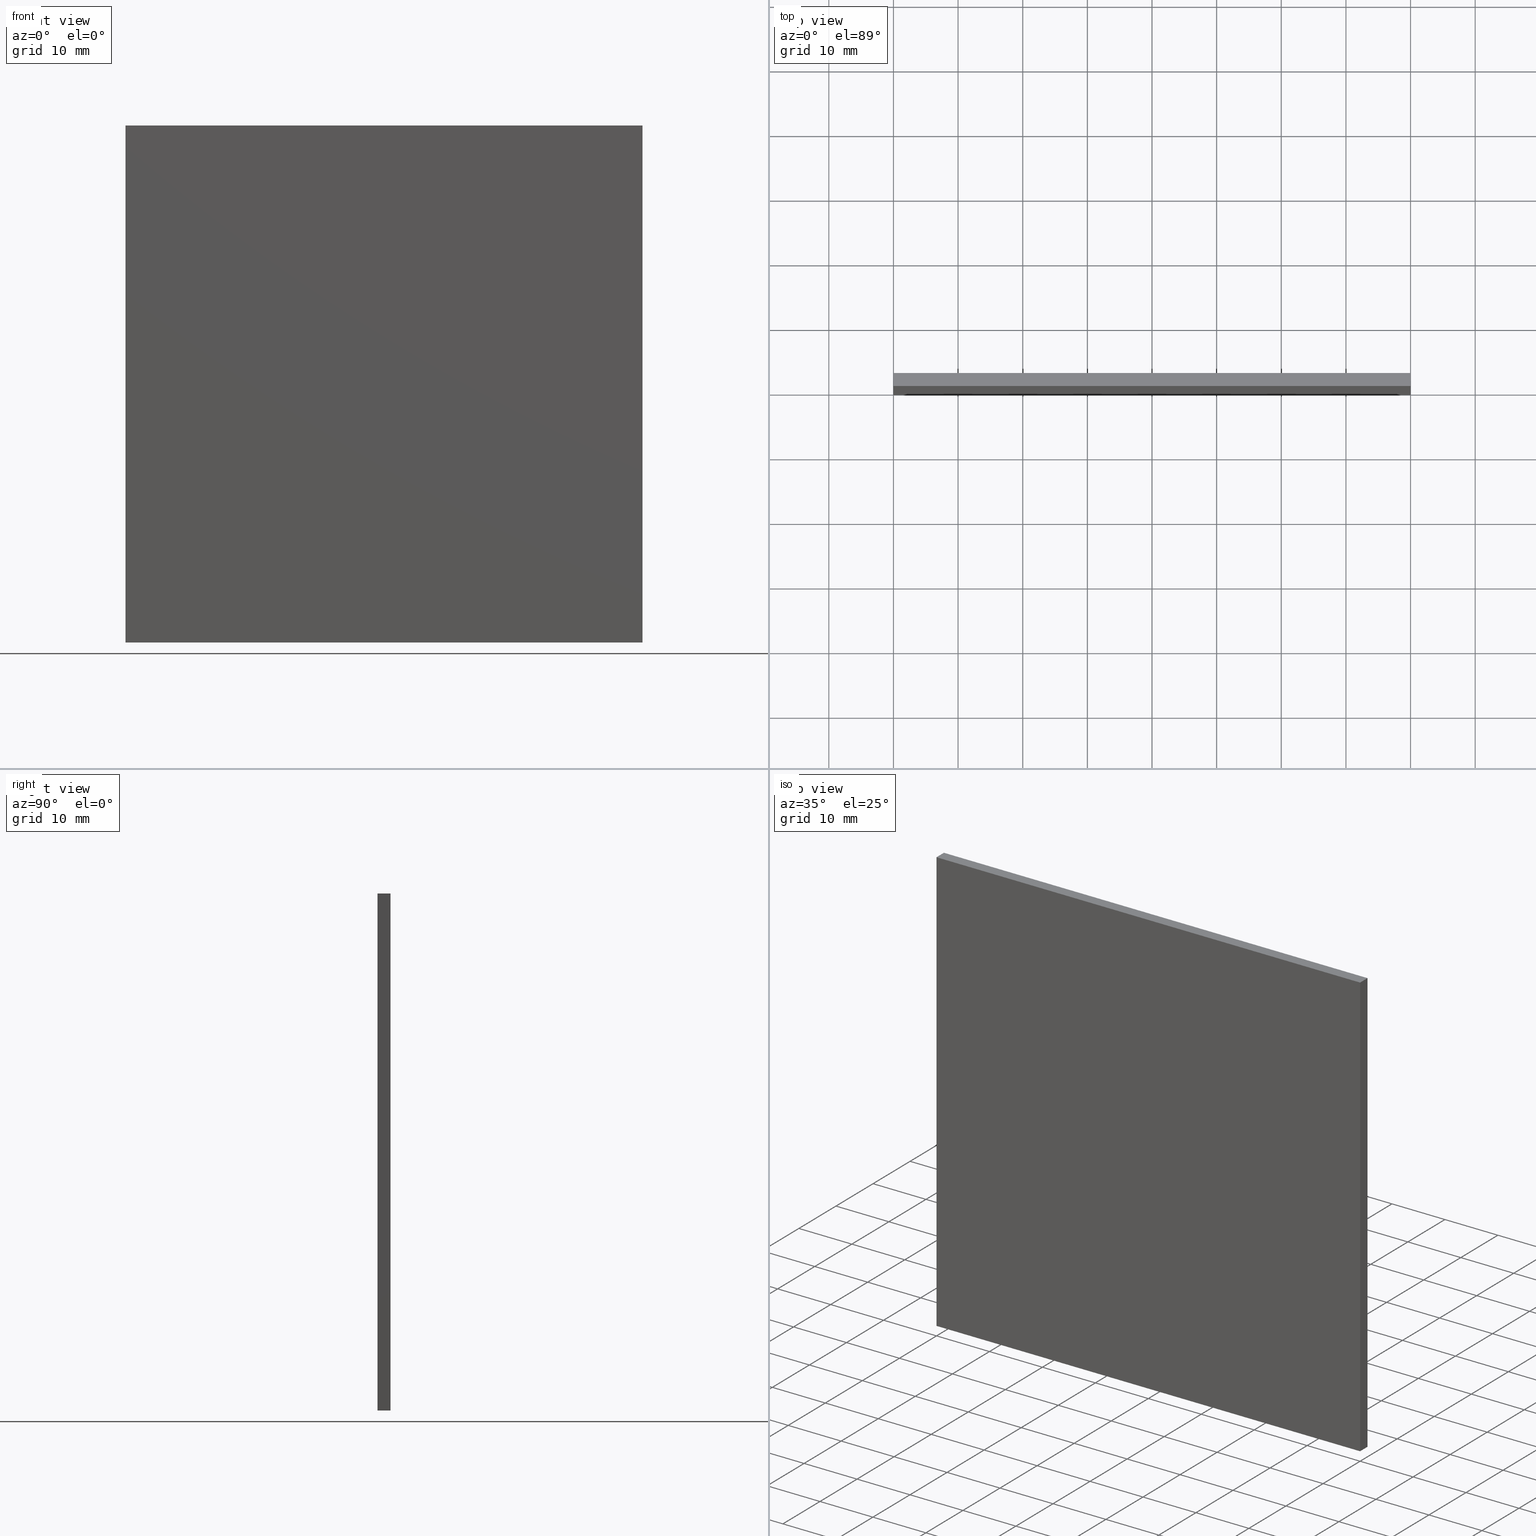
[diagram: canonical four-view strip — front | top / right | iso, engineering-drawing reading convention]
A machine part, canonical four-view strip (front | top / right | iso — engineering-drawing reading convention). The complete STEP part file that produces these views, byte-faithful:
ISO-10303-21;
HEADER;
FILE_DESCRIPTION (( 'STEP AP214' ),
    '1' );
FILE_NAME ('258516.STEP',
    '2019-08-07T02:28:26',
    ( 'user' ),
    ( '΢���й�' ),
    'SwSTEP 2.0',
    'SolidWorks 2016',
    '' );
FILE_SCHEMA (( 'AUTOMOTIVE_DESIGN' ));
ENDSEC;

DATA;
#1 = MECHANICAL_DESIGN_GEOMETRIC_PRESENTATION_REPRESENTATION (  '', ( #171 ), #10 ) ;
#2 = COLOUR_RGB ( '',1.000000000000000000, 1.000000000000000000, 1.000000000000000000 ) ;
#3 = ADVANCED_FACE ( 'NONE', ( #141 ), #117, .T. ) ;
#4 = MECHANICAL_DESIGN_GEOMETRIC_PRESENTATION_REPRESENTATION (  '', ( #187 ), #18 ) ;
#5 = ORIENTED_EDGE ( 'NONE', *, *, #110, .T. ) ;
#6 = DIRECTION ( 'NONE',  ( -0.0000000000000000000, -1.000000000000000000, -0.0000000000000000000 ) ) ;
#7 = LINE ( 'NONE', #96, #168 ) ;
#8 = EDGE_CURVE ( 'NONE', #40, #31, #56, .T. ) ;
#9 = DIRECTION ( 'NONE',  ( 0.0000000000000000000, 0.0000000000000000000, 1.000000000000000000 ) ) ;
#10 =( GEOMETRIC_REPRESENTATION_CONTEXT ( 3 ) GLOBAL_UNCERTAINTY_ASSIGNED_CONTEXT ( ( #189 ) ) GLOBAL_UNIT_ASSIGNED_CONTEXT ( ( #11, #107, #58 ) ) REPRESENTATION_CONTEXT ( 'NONE', 'WORKASPACE' ) );
#11 =( LENGTH_UNIT ( ) NAMED_UNIT ( * ) SI_UNIT ( .MILLI., .METRE. ) );
#12 = FACE_OUTER_BOUND ( 'NONE', #112, .T. ) ;
#13 = EDGE_LOOP ( 'NONE', ( #153, #20, #83, #105 ) ) ;
#14 = DIRECTION ( 'NONE',  ( 0.0000000000000000000, 0.0000000000000000000, 1.000000000000000000 ) ) ;
#15 =( NAMED_UNIT ( * ) PLANE_ANGLE_UNIT ( ) SI_UNIT ( $, .RADIAN. ) );
#16 = DIRECTION ( 'NONE',  ( -0.0000000000000000000, -1.000000000000000000, -0.0000000000000000000 ) ) ;
#17 = VECTOR ( 'NONE', #6, 1000.000000000000000 ) ;
#18 =( GEOMETRIC_REPRESENTATION_CONTEXT ( 3 ) GLOBAL_UNCERTAINTY_ASSIGNED_CONTEXT ( ( #155 ) ) GLOBAL_UNIT_ASSIGNED_CONTEXT ( ( #92, #15, #116 ) ) REPRESENTATION_CONTEXT ( 'NONE', 'WORKASPACE' ) );
#19 = SHAPE_DEFINITION_REPRESENTATION ( #167, #54 ) ;
#20 = ORIENTED_EDGE ( 'NONE', *, *, #147, .F. ) ;
#21 = ORIENTED_EDGE ( 'NONE', *, *, #53, .T. ) ;
#22 = EDGE_CURVE ( 'NONE', #76, #120, #103, .T. ) ;
#23 = LINE ( 'NONE', #28, #104 ) ;
#24 = ORIENTED_EDGE ( 'NONE', *, *, #150, .F. ) ;
#25 = APPLICATION_CONTEXT ( 'automotive_design' ) ;
#26 = SURFACE_SIDE_STYLE ('',( #132 ) ) ;
#27 = VECTOR ( 'NONE', #98, 1000.000000000000000 ) ;
#28 = CARTESIAN_POINT ( 'NONE',  ( -40.00000000000001400, 0.0000000000000000000, -40.00000000000000700 ) ) ;
#29 = ORIENTED_EDGE ( 'NONE', *, *, #147, .T. ) ;
#30 = DIRECTION ( 'NONE',  ( 1.000000000000000000, 0.0000000000000000000, 0.0000000000000000000 ) ) ;
#31 = VERTEX_POINT ( 'NONE', #165 ) ;
#32 = CARTESIAN_POINT ( 'NONE',  ( 40.00000000000000000, 0.0000000000000000000, -40.00000000000000700 ) ) ;
#33 = EDGE_CURVE ( 'NONE', #76, #85, #7, .T. ) ;
#34 = DIRECTION ( 'NONE',  ( 8.673617379884035500E-017, -0.0000000000000000000, -1.000000000000000000 ) ) ;
#35 = LINE ( 'NONE', #156, #27 ) ;
#36 = DIRECTION ( 'NONE',  ( 0.0000000000000000000, 1.000000000000000000, -0.0000000000000000000 ) ) ;
#37 = FILL_AREA_STYLE_COLOUR ( '', #2 ) ;
#38 = ORIENTED_EDGE ( 'NONE', *, *, #33, .F. ) ;
#39 = AXIS2_PLACEMENT_3D ( 'NONE', #100, #88, #69 ) ;
#40 = VERTEX_POINT ( 'NONE', #136 ) ;
#41 = FILL_AREA_STYLE ('',( #67 ) ) ;
#42 = PLANE ( 'NONE',  #163 ) ;
#43 = PLANE ( 'NONE',  #47 ) ;
#44 = CARTESIAN_POINT ( 'NONE',  ( -40.00000000000001400, 2.000000000000000000, -40.00000000000000700 ) ) ;
#45 = CARTESIAN_POINT ( 'NONE',  ( -40.00000000000001400, 0.0000000000000000000, -40.00000000000000700 ) ) ;
#46 = ADVANCED_FACE ( 'NONE', ( #130 ), #42, .F. ) ;
#47 = AXIS2_PLACEMENT_3D ( 'NONE', #166, #79, #185 ) ;
#48 = VECTOR ( 'NONE', #62, 1000.000000000000000 ) ;
#49 = PRESENTATION_STYLE_ASSIGNMENT (( #176 ) ) ;
#50 = AXIS2_PLACEMENT_3D ( 'NONE', #149, #9, #70 ) ;
#51 = PRESENTATION_STYLE_ASSIGNMENT (( #84 ) ) ;
#52 = SURFACE_STYLE_FILL_AREA ( #196 ) ;
#53 = EDGE_CURVE ( 'NONE', #148, #31, #93, .T. ) ;
#54 = ADVANCED_BREP_SHAPE_REPRESENTATION ( '258516', ( #77, #50 ), #86 ) ;
#55 = ADVANCED_FACE ( 'NONE', ( #12 ), #200, .F. ) ;
#56 = LINE ( 'NONE', #127, #172 ) ;
#57 =( NAMED_UNIT ( * ) SI_UNIT ( $, .STERADIAN. ) SOLID_ANGLE_UNIT ( ) );
#58 =( NAMED_UNIT ( * ) SI_UNIT ( $, .STERADIAN. ) SOLID_ANGLE_UNIT ( ) );
#59 = SURFACE_SIDE_STYLE ('',( #52 ) ) ;
#60 = LINE ( 'NONE', #123, #48 ) ;
#61 = DIRECTION ( 'NONE',  ( 1.000000000000000000, 0.0000000000000000000, -0.0000000000000000000 ) ) ;
#62 = DIRECTION ( 'NONE',  ( -0.0000000000000000000, -1.000000000000000000, -0.0000000000000000000 ) ) ;
#63 = PRODUCT_DEFINITION ( 'δ֪', '', #75, #177 ) ;
#64 = CARTESIAN_POINT ( 'NONE',  ( -40.00000000000000700, 0.0000000000000000000, 39.99999999999999300 ) ) ;
#65 = ORIENTED_EDGE ( 'NONE', *, *, #22, .T. ) ;
#66 = CARTESIAN_POINT ( 'NONE',  ( 40.00000000000000000, 0.0000000000000000000, -40.00000000000000700 ) ) ;
#67 = FILL_AREA_STYLE_COLOUR ( '', #144 ) ;
#68 = LINE ( 'NONE', #66, #151 ) ;
#69 = DIRECTION ( 'NONE',  ( 0.0000000000000000000, 0.0000000000000000000, 1.000000000000000000 ) ) ;
#70 = DIRECTION ( 'NONE',  ( 1.000000000000000000, 0.0000000000000000000, 0.0000000000000000000 ) ) ;
#71 = ORIENTED_EDGE ( 'NONE', *, *, #119, .F. ) ;
#72 = AXIS2_PLACEMENT_3D ( 'NONE', #95, #36, #14 ) ;
#73 = ORIENTED_EDGE ( 'NONE', *, *, #150, .T. ) ;
#74 = VECTOR ( 'NONE', #97, 1000.000000000000000 ) ;
#75 = PRODUCT_DEFINITION_FORMATION_WITH_SPECIFIED_SOURCE ( '�κ�', '', #131, .NOT_KNOWN. ) ;
#76 = VERTEX_POINT ( 'NONE', #109 ) ;
#77 = MANIFOLD_SOLID_BREP ( '͹̨-����1', #118 ) ;
#78 = EDGE_LOOP ( 'NONE', ( #21, #192, #190, #29 ) ) ;
#79 = DIRECTION ( 'NONE',  ( 0.0000000000000000000, 0.0000000000000000000, -1.000000000000000000 ) ) ;
#80 = FACE_OUTER_BOUND ( 'NONE', #145, .T. ) ;
#81 = EDGE_CURVE ( 'NONE', #40, #160, #164, .T. ) ;
#82 = DIRECTION ( 'NONE',  ( 8.673617379884035500E-017, 0.0000000000000000000, 1.000000000000000000 ) ) ;
#83 = ORIENTED_EDGE ( 'NONE', *, *, #22, .F. ) ;
#84 = SURFACE_STYLE_USAGE ( .BOTH. , #26 ) ;
#85 = VERTEX_POINT ( 'NONE', #32 ) ;
#86 =( GEOMETRIC_REPRESENTATION_CONTEXT ( 3 ) GLOBAL_UNCERTAINTY_ASSIGNED_CONTEXT ( ( #138 ) ) GLOBAL_UNIT_ASSIGNED_CONTEXT ( ( #94, #178, #57 ) ) REPRESENTATION_CONTEXT ( 'NONE', 'WORKASPACE' ) );
#87 = CARTESIAN_POINT ( 'NONE',  ( -40.00000000000000700, 2.000000000000000000, 39.99999999999999300 ) ) ;
#88 = DIRECTION ( 'NONE',  ( 0.0000000000000000000, 1.000000000000000000, -0.0000000000000000000 ) ) ;
#89 = PRODUCT_RELATED_PRODUCT_CATEGORY ( 'part', '', ( #131 ) ) ;
#90 = ORIENTED_EDGE ( 'NONE', *, *, #53, .F. ) ;
#91 = AXIS2_PLACEMENT_3D ( 'NONE', #122, #157, #111 ) ;
#92 =( LENGTH_UNIT ( ) NAMED_UNIT ( * ) SI_UNIT ( .MILLI., .METRE. ) );
#93 = LINE ( 'NONE', #137, #134 ) ;
#94 =( LENGTH_UNIT ( ) NAMED_UNIT ( * ) SI_UNIT ( .MILLI., .METRE. ) );
#95 = CARTESIAN_POINT ( 'NONE',  ( 0.0000000000000000000, 0.0000000000000000000, 0.0000000000000000000 ) ) ;
#96 = CARTESIAN_POINT ( 'NONE',  ( 40.00000000000000000, 2.000000000000000000, -40.00000000000000700 ) ) ;
#97 = DIRECTION ( 'NONE',  ( 8.673617379884035500E-017, -0.0000000000000000000, -1.000000000000000000 ) ) ;
#98 = DIRECTION ( 'NONE',  ( 8.673617379884035500E-017, 0.0000000000000000000, 1.000000000000000000 ) ) ;
#99 = VECTOR ( 'NONE', #199, 1000.000000000000000 ) ;
#100 = CARTESIAN_POINT ( 'NONE',  ( 0.0000000000000000000, 2.000000000000000000, 0.0000000000000000000 ) ) ;
#101 = EDGE_CURVE ( 'NONE', #160, #76, #114, .T. ) ;
#102 = ADVANCED_FACE ( 'NONE', ( #80 ), #43, .F. ) ;
#103 = LINE ( 'NONE', #140, #99 ) ;
#104 = VECTOR ( 'NONE', #180, 1000.000000000000000 ) ;
#105 = ORIENTED_EDGE ( 'NONE', *, *, #33, .T. ) ;
#106 = ORIENTED_EDGE ( 'NONE', *, *, #8, .T. ) ;
#107 =( NAMED_UNIT ( * ) PLANE_ANGLE_UNIT ( ) SI_UNIT ( $, .RADIAN. ) );
#108 = FACE_OUTER_BOUND ( 'NONE', #146, .T. ) ;
#109 = CARTESIAN_POINT ( 'NONE',  ( 40.00000000000000000, 2.000000000000000000, -40.00000000000000700 ) ) ;
#110 = EDGE_CURVE ( 'NONE', #120, #40, #35, .T. ) ;
#111 = DIRECTION ( 'NONE',  ( -8.673617379884035500E-017, 0.0000000000000000000, -1.000000000000000000 ) ) ;
#112 = EDGE_LOOP ( 'NONE', ( #129, #38, #125, #73 ) ) ;
#113 = ADVANCED_FACE ( 'NONE', ( #108 ), #175, .F. ) ;
#114 = LINE ( 'NONE', #170, #74 ) ;
#115 = APPLICATION_PROTOCOL_DEFINITION ( 'draft international standard', 'automotive_design', 1998, #152 ) ;
#116 =( NAMED_UNIT ( * ) SI_UNIT ( $, .STERADIAN. ) SOLID_ANGLE_UNIT ( ) );
#117 = PLANE ( 'NONE',  #39 ) ;
#118 = CLOSED_SHELL ( 'NONE', ( #55, #46, #159, #102, #3, #113 ) ) ;
#119 = EDGE_CURVE ( 'NONE', #174, #85, #68, .T. ) ;
#120 = VERTEX_POINT ( 'NONE', #194 ) ;
#121 = ORIENTED_EDGE ( 'NONE', *, *, #128, .F. ) ;
#122 = CARTESIAN_POINT ( 'NONE',  ( -40.00000000000001400, 2.000000000000000000, -40.00000000000000700 ) ) ;
#123 = CARTESIAN_POINT ( 'NONE',  ( 39.99999999999999300, 2.000000000000000000, 39.99999999999999300 ) ) ;
#124 = PLANE ( 'NONE',  #91 ) ;
#125 = ORIENTED_EDGE ( 'NONE', *, *, #101, .F. ) ;
#126 = CARTESIAN_POINT ( 'NONE',  ( 39.99999999999999300, 2.000000000000000000, 39.99999999999999300 ) ) ;
#127 = CARTESIAN_POINT ( 'NONE',  ( -40.00000000000000700, 2.000000000000000000, 39.99999999999999300 ) ) ;
#128 = EDGE_CURVE ( 'NONE', #31, #174, #186, .T. ) ;
#129 = ORIENTED_EDGE ( 'NONE', *, *, #119, .T. ) ;
#130 = FACE_OUTER_BOUND ( 'NONE', #13, .T. ) ;
#131 = PRODUCT ( '258516', '258516', '', ( #181 ) ) ;
#132 = SURFACE_STYLE_FILL_AREA ( #41 ) ;
#133 = DIRECTION ( 'NONE',  ( -8.673617379884035500E-017, 0.0000000000000000000, 1.000000000000000000 ) ) ;
#134 = VECTOR ( 'NONE', #82, 1000.000000000000000 ) ;
#135 = CARTESIAN_POINT ( 'NONE',  ( -40.00000000000001400, 2.000000000000000000, -40.00000000000000700 ) ) ;
#136 = CARTESIAN_POINT ( 'NONE',  ( -40.00000000000000700, 2.000000000000000000, 39.99999999999999300 ) ) ;
#137 = CARTESIAN_POINT ( 'NONE',  ( -40.00000000000001400, 0.0000000000000000000, -40.00000000000000700 ) ) ;
#138 = UNCERTAINTY_MEASURE_WITH_UNIT (LENGTH_MEASURE( 1.000000000000000100E-005 ), #94, 'distance_accuracy_value', 'NONE');
#139 = EDGE_CURVE ( 'NONE', #85, #148, #23, .T. ) ;
#140 = CARTESIAN_POINT ( 'NONE',  ( -40.00000000000001400, 2.000000000000000000, -40.00000000000000700 ) ) ;
#141 = FACE_OUTER_BOUND ( 'NONE', #202, .T. ) ;
#142 = CARTESIAN_POINT ( 'NONE',  ( 40.00000000000000000, 2.000000000000000000, -40.00000000000000700 ) ) ;
#143 = LINE ( 'NONE', #135, #17 ) ;
#144 = COLOUR_RGB ( '',1.000000000000000000, 1.000000000000000000, 1.000000000000000000 ) ;
#145 = EDGE_LOOP ( 'NONE', ( #154, #24, #162, #106 ) ) ;
#146 = EDGE_LOOP ( 'NONE', ( #71, #121, #90, #188 ) ) ;
#147 = EDGE_CURVE ( 'NONE', #120, #148, #143, .T. ) ;
#148 = VERTEX_POINT ( 'NONE', #45 ) ;
#149 = CARTESIAN_POINT ( 'NONE',  ( 0.0000000000000000000, 0.0000000000000000000, 0.0000000000000000000 ) ) ;
#150 = EDGE_CURVE ( 'NONE', #160, #174, #60, .T. ) ;
#151 = VECTOR ( 'NONE', #34, 1000.000000000000000 ) ;
#152 = APPLICATION_CONTEXT ( 'automotive_design' ) ;
#153 = ORIENTED_EDGE ( 'NONE', *, *, #139, .T. ) ;
#154 = ORIENTED_EDGE ( 'NONE', *, *, #128, .T. ) ;
#155 = UNCERTAINTY_MEASURE_WITH_UNIT (LENGTH_MEASURE( 1.000000000000000100E-005 ), #92, 'distance_accuracy_value', 'NONE');
#156 = CARTESIAN_POINT ( 'NONE',  ( -40.00000000000001400, 2.000000000000000000, -40.00000000000000700 ) ) ;
#157 = DIRECTION ( 'NONE',  ( 1.000000000000000000, 0.0000000000000000000, -8.673617379884035500E-017 ) ) ;
#158 = DIRECTION ( 'NONE',  ( -1.000000000000000000, 0.0000000000000000000, -8.673617379884035500E-017 ) ) ;
#159 = ADVANCED_FACE ( 'NONE', ( #173 ), #124, .F. ) ;
#160 = VERTEX_POINT ( 'NONE', #126 ) ;
#161 = ORIENTED_EDGE ( 'NONE', *, *, #101, .T. ) ;
#162 = ORIENTED_EDGE ( 'NONE', *, *, #81, .F. ) ;
#163 = AXIS2_PLACEMENT_3D ( 'NONE', #44, #195, #61 ) ;
#164 = LINE ( 'NONE', #87, #191 ) ;
#165 = CARTESIAN_POINT ( 'NONE',  ( -40.00000000000000700, 0.0000000000000000000, 39.99999999999999300 ) ) ;
#166 = CARTESIAN_POINT ( 'NONE',  ( -40.00000000000000700, 2.000000000000000000, 39.99999999999999300 ) ) ;
#167 = PRODUCT_DEFINITION_SHAPE ( 'NONE', 'NONE',  #63 ) ;
#168 = VECTOR ( 'NONE', #169, 1000.000000000000000 ) ;
#169 = DIRECTION ( 'NONE',  ( -0.0000000000000000000, -1.000000000000000000, -0.0000000000000000000 ) ) ;
#170 = CARTESIAN_POINT ( 'NONE',  ( 40.00000000000000000, 2.000000000000000000, -40.00000000000000700 ) ) ;
#171 = STYLED_ITEM ( 'NONE', ( #49 ), #77 ) ;
#172 = VECTOR ( 'NONE', #16, 1000.000000000000000 ) ;
#173 = FACE_OUTER_BOUND ( 'NONE', #78, .T. ) ;
#174 = VERTEX_POINT ( 'NONE', #201 ) ;
#175 = PLANE ( 'NONE',  #72 ) ;
#176 = SURFACE_STYLE_USAGE ( .BOTH. , #59 ) ;
#177 = PRODUCT_DEFINITION_CONTEXT ( 'detailed design', #152, 'design' ) ;
#178 =( NAMED_UNIT ( * ) PLANE_ANGLE_UNIT ( ) SI_UNIT ( $, .RADIAN. ) );
#179 = VECTOR ( 'NONE', #30, 1000.000000000000000 ) ;
#180 = DIRECTION ( 'NONE',  ( -1.000000000000000000, -0.0000000000000000000, -0.0000000000000000000 ) ) ;
#181 = PRODUCT_CONTEXT ( 'NONE', #25, 'mechanical' ) ;
#182 = AXIS2_PLACEMENT_3D ( 'NONE', #142, #158, #133 ) ;
#183 = ORIENTED_EDGE ( 'NONE', *, *, #81, .T. ) ;
#184 = DIRECTION ( 'NONE',  ( 1.000000000000000000, 0.0000000000000000000, 0.0000000000000000000 ) ) ;
#185 = DIRECTION ( 'NONE',  ( -1.000000000000000000, 0.0000000000000000000, -0.0000000000000000000 ) ) ;
#186 = LINE ( 'NONE', #64, #179 ) ;
#187 = STYLED_ITEM ( 'NONE', ( #51 ), #54 ) ;
#188 = ORIENTED_EDGE ( 'NONE', *, *, #139, .F. ) ;
#189 = UNCERTAINTY_MEASURE_WITH_UNIT (LENGTH_MEASURE( 1.000000000000000100E-005 ), #11, 'distance_accuracy_value', 'NONE');
#190 = ORIENTED_EDGE ( 'NONE', *, *, #110, .F. ) ;
#191 = VECTOR ( 'NONE', #184, 1000.000000000000000 ) ;
#192 = ORIENTED_EDGE ( 'NONE', *, *, #8, .F. ) ;
#193 = PRESENTATION_LAYER_ASSIGNMENT (  '', '', ( #171 ) ) ;
#194 = CARTESIAN_POINT ( 'NONE',  ( -40.00000000000001400, 2.000000000000000000, -40.00000000000000700 ) ) ;
#195 = DIRECTION ( 'NONE',  ( 0.0000000000000000000, 0.0000000000000000000, 1.000000000000000000 ) ) ;
#196 = FILL_AREA_STYLE ('',( #37 ) ) ;
#197 = APPLICATION_PROTOCOL_DEFINITION ( 'draft international standard', 'automotive_design', 1998, #25 ) ;
#198 = PRESENTATION_LAYER_ASSIGNMENT (  '', '', ( #187 ) ) ;
#199 = DIRECTION ( 'NONE',  ( -1.000000000000000000, -0.0000000000000000000, -0.0000000000000000000 ) ) ;
#200 = PLANE ( 'NONE',  #182 ) ;
#201 = CARTESIAN_POINT ( 'NONE',  ( 39.99999999999999300, 0.0000000000000000000, 39.99999999999999300 ) ) ;
#202 = EDGE_LOOP ( 'NONE', ( #161, #65, #5, #183 ) ) ;
ENDSEC;
END-ISO-10303-21;
